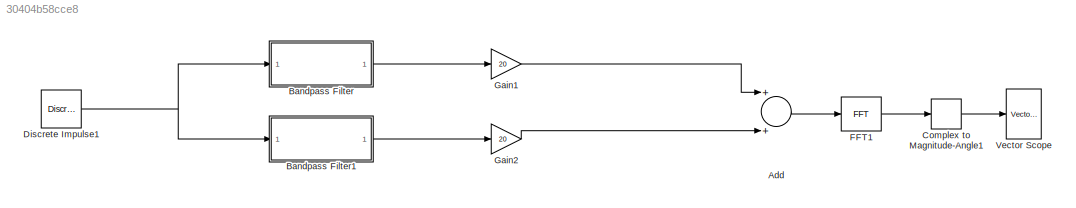
MODEL slx_30404b58cce8
KIND model
CONFIG AbsTol = auto
CONFIG EnableMultiTasking = off
CONFIG FixedStep = auto
CONFIG MaxStep = auto
CONFIG MinStep = auto
CONFIG RelTol = 1e-3
CONFIG SampleTimeConstraint = Unconstrained
CONFIG Solver = FixedStepDiscrete
CONFIG SolverName = FixedStepDiscrete
CONFIG StartTime = 0.0
CONFIG StopTime = 0.001
BLOCK [Sum] Add
  InputSameDT = off
  OutDataTypeStr = Inherit: Inherit via internal rule
  Ports = [2, 1]
  SaturateOnIntegerOverflow = off
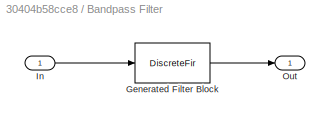
BLOCK [SubSystem] Bandpass Filter
  CopyFcn = fdesignblkfcn(gcbh, {'CopyFcn'});
  DialogController = fdesignblkfcn
  InitFcn = fdesignblkfcn(gcbh, {'InitFcn'});
  Ports = [1, 1]
  RequestExecContextInheritance = off
  UserDataPersistent = on
BLOCK [DiscreteFir] Bandpass Filter/Generated Filter Block
  Coefficients = [0.000639816347610437154 -0.000511300230993094349 -0.000312633337614588453 -0.000155768883099730309 -3.56834566911297751e-05 3.09827602980688695e-05 1.34581936856901235e-05 -0.000111082567480470944 -0.000334152920970287549 -0.000597596298732064085 -0.000796778369085952929 -0.000805062516806094499 -0.000519554617280051597 8.73325396986945993e-05 0.000927771727554775952 0.00179396059805746687 0.0023...<+2697ch>
  InputPortMap = u0
  InputProcessing = Columns as channels (frame based)
  OutputPortMap = o0
  Ports = [1, 1]
  Tag = BlockMethodSubSystem
BLOCK [Inport] Bandpass Filter/In
  IconDisplay = Port number
BLOCK [Outport] Bandpass Filter/Out
  IconDisplay = Port number
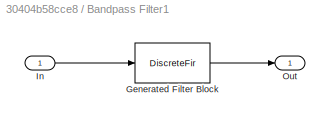
BLOCK [SubSystem] Bandpass Filter1
  CopyFcn = fdesignblkfcn(gcbh, {'CopyFcn'});
  DialogController = fdesignblkfcn
  InitFcn = fdesignblkfcn(gcbh, {'InitFcn'});
  Ports = [1, 1]
  RequestExecContextInheritance = off
  UserDataPersistent = on
BLOCK [DiscreteFir] Bandpass Filter1/Generated Filter Block
  Coefficients = [0.000638808451681908821 -2.83262166050421297e-05 -0.000873949528954946417 -0.00158946310796689578 -0.00121892459966629375 0.000534699838326503944 0.00266146987282030525 0.00330259721976598189 0.00128091953120987052 -0.00251090104086588647 -0.00529900129071889277 -0.00446366036512952161 5.69476295421665613e-05 0.00520415019324160181 0.00695536159683846859 0.00367340222859283095 -0.0022758631699628...<+1781ch>
  InputPortMap = u0
  InputProcessing = Columns as channels (frame based)
  OutputPortMap = o0
  Ports = [1, 1]
  Tag = BlockMethodSubSystem
BLOCK [Inport] Bandpass Filter1/In
  IconDisplay = Port number
BLOCK [Outport] Bandpass Filter1/Out
  IconDisplay = Port number
BLOCK [ComplexToMagnitudeAngle] Complex to Magnitude-Angle1
  Output = Magnitude
  Ports = [1, 1]
BLOCK [Reference] Discrete Impulse1  REF=dspsrcs4/Discrete 
Impulse
  Ports = [0, 1]
  SourceBlock = dspsrcs4/Discrete \nImpulse
  SourceProductBaseCode = DS
  SourceProductName = DSP System Toolbox
  SourceType = Discrete Impulse
BLOCK [Reference] FFT1  REF=dspxfrm3/FFT
  Ports = [1, 1]
  SourceBlock = dspxfrm3/FFT
  SourceProductBaseCode = DS
  SourceProductName = DSP System Toolbox
  SourceType = FFT
BLOCK [Gain] Gain1
  Gain = 20
  OutDataTypeStr = Inherit: Inherit via internal rule
  ParamDataTypeStr = Inherit: Inherit via internal rule
  SaturateOnIntegerOverflow = off
BLOCK [Gain] Gain2
  Gain = 20
  OutDataTypeStr = Inherit: Inherit via internal rule
  ParamDataTypeStr = Inherit: Inherit via internal rule
  SaturateOnIntegerOverflow = off
BLOCK [Reference] Vector Scope  REF=dspobslib/Vector
Scope
  Ports = [1]
  SourceBlock = dspobslib/Vector\nScope
  SourceProductBaseCode = DS
  SourceProductName = DSP System Toolbox
  SourceType = Vector Scope
LINE Add:1 -> FFT1:1
LINE Bandpass Filter1:1 -> Gain2:1
LINE Bandpass Filter:1 -> Gain1:1
LINE Complex to Magnitude-Angle1:1 -> Vector Scope:1
NET Discrete Impulse1:1 -> Bandpass Filter1:1, Bandpass Filter:1
LINE FFT1:1 -> Complex to Magnitude-Angle1:1
LINE Gain1:1 -> Add:1
LINE Gain2:1 -> Add:2
note: NET lines group one-source signal fan-out (src -> all destinations, sorted); 1:1 wires keep LINE
